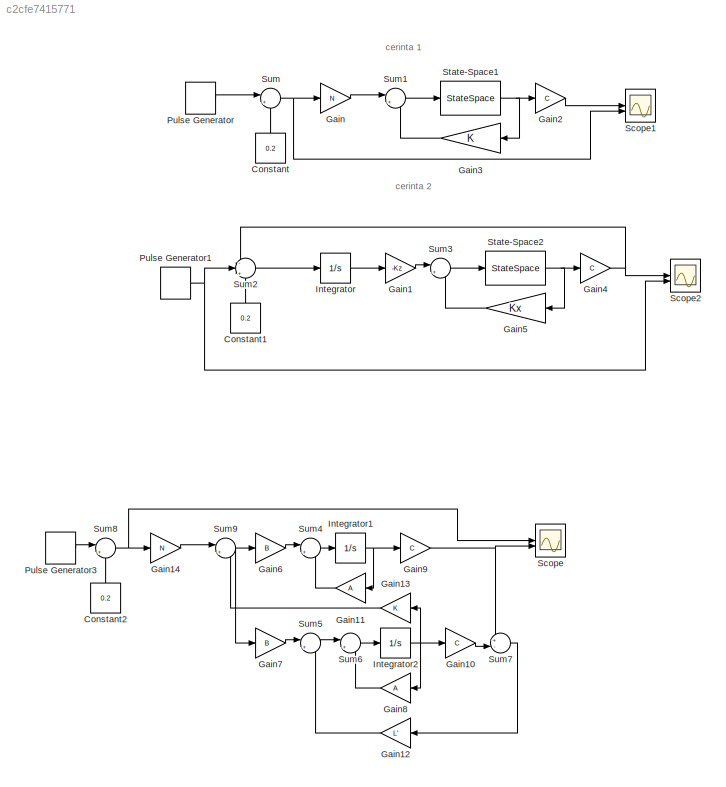
MODEL slx_c2cfe7415771
KIND model
CONFIG AbsTol = auto
CONFIG EnableMultiTasking = off
CONFIG FixedStep = auto
CONFIG MaxStep = auto
CONFIG MinStep = auto
CONFIG RelTol = 1e-3
CONFIG SampleTimeConstraint = Unconstrained
CONFIG SolverName = VariableStepAuto
CONFIG StartTime = 0.0
CONFIG StopTime = 100
BLOCK [Constant] Constant
  Commented = on
  NameLocation = right
  Value = 0.2
BLOCK [Constant] Constant1
  Commented = on
  NameLocation = right
  Value = 0.2
BLOCK [Constant] Constant2
  NameLocation = right
  Value = 0.2
BLOCK [Gain] Gain
  Commented = on
  Gain = N
BLOCK [Gain] Gain1
  Commented = on
  Gain = -Kz
BLOCK [Gain] Gain10
  Gain = C
  Multiplication = Matrix(K*u) (u vector)
BLOCK [Gain] Gain11
  Gain = A
  Multiplication = Matrix(K*u) (u vector)
  NameLocation = top
BLOCK [Gain] Gain12
  Gain = L'
  Multiplication = Matrix(K*u) (u vector)
  NameLocation = top
BLOCK [Gain] Gain13
  Gain = K
  Multiplication = Matrix(K*u) (u vector)
  NameLocation = top
BLOCK [Gain] Gain14
  Gain = N
  Multiplication = Matrix(K*u) (u vector)
BLOCK [Gain] Gain2
  Commented = on
  Gain = C
  Multiplication = Matrix(K*u) (u vector)
BLOCK [Gain] Gain3
  Commented = on
  Gain = K
  Multiplication = Matrix(K*u) (u vector)
  NameLocation = top
BLOCK [Gain] Gain4
  Commented = on
  Gain = C
  Multiplication = Matrix(K*u) (u vector)
BLOCK [Gain] Gain5
  Commented = on
  Gain = Kx
  Multiplication = Matrix(K*u) (u vector)
  NameLocation = top
BLOCK [Gain] Gain6
  Gain = B
  Multiplication = Matrix(K*u) (u vector)
BLOCK [Gain] Gain7
  Gain = B
  Multiplication = Matrix(K*u) (u vector)
BLOCK [Gain] Gain8
  Gain = A
  Multiplication = Matrix(K*u) (u vector)
  NameLocation = top
BLOCK [Gain] Gain9
  Gain = C
  Multiplication = Matrix(K*u) (u vector)
BLOCK [Integrator] Integrator
  Commented = on
BLOCK [Integrator] Integrator1
BLOCK [Integrator] Integrator2
  InitialCondition = [1,2,3]
BLOCK [DiscretePulseGenerator] Pulse Generator
  Amplitude = 0.4
  Commented = on
  Period = 30
  PhaseDelay = 15
  PulseType = Time based
  PulseWidth = 50
BLOCK [DiscretePulseGenerator] Pulse Generator1
  Amplitude = 0.4
  Commented = on
  Period = 30
  PhaseDelay = 15
  PulseType = Time based
  PulseWidth = 50
BLOCK [DiscretePulseGenerator] Pulse Generator3
  Amplitude = 0.4
  Period = 30
  PhaseDelay = 15
  PulseType = Time based
  PulseWidth = 50
BLOCK [Scope] Scope
  Floating = off
  NumInputPorts = 2
  ScopeSpecificationString = Simulink.scopes.TimeScopeBlockCfg('CurrentConfiguration', extmgr.ConfigurationSet(extmgr.Configuration('Core','General UI',true),extmgr.Configuration('Core','Source UI',true),extmgr.Configuration('Sources','WiredSimulink',true,'DataLoggingVariableName','ScopeData2'),extmgr.Configuration('Visuals','Time Domain',true,'SerializedDisplays',{struct('MinYLimReal','-11.70633','MaxYLimReal','6.96524','YLa...<+1403ch>
BLOCK [Scope] Scope1
  Commented = on
  Floating = off
  NumInputPorts = 2
  ScopeSpecificationString = Simulink.scopes.TimeScopeBlockCfg('CurrentConfiguration', extmgr.ConfigurationSet(extmgr.Configuration('Core','General UI',true),extmgr.Configuration('Core','Source UI',true),extmgr.Configuration('Sources','WiredSimulink',true,'DataLoggingVariableName','ScopeData1'),extmgr.Configuration('Visuals','Time Domain',true,'SerializedDisplays',{struct('MinYLimReal','-3.89303','MaxYLimReal','25.80732','YLa...<+2029ch>
BLOCK [Scope] Scope2
  Commented = on
  Floating = off
  NumInputPorts = 2
  ScopeSpecificationString = Simulink.scopes.TimeScopeBlockCfg('CurrentConfiguration', extmgr.ConfigurationSet(extmgr.Configuration('Core','General UI',true),extmgr.Configuration('Core','Source UI',true),extmgr.Configuration('Sources','WiredSimulink',true),extmgr.Configuration('Visuals','Time Domain',true,'SerializedDisplays',{struct('MinYLimReal','-0.27948','MaxYLimReal','0.27979','YLabelReal','','MinYLimMag','0.00000','MaxY...<+2027ch>
BLOCK [StateSpace] State-Space1
  A = A
  B = B
  C = eye(3)
  Commented = on
  D = [0;0;0]
  InitialCondition = [1;2;3]
BLOCK [StateSpace] State-Space2
  A = A
  B = B
  C = eye(3)
  Commented = on
  D = [0;0;0]
  InitialCondition = 0
BLOCK [Sum] Sum
  Commented = on
  Inputs = |+-
BLOCK [Sum] Sum1
  Commented = on
  Inputs = |+-
BLOCK [Sum] Sum2
  Commented = on
  Inputs = -|+-
BLOCK [Sum] Sum3
  Commented = on
  Inputs = |+-
BLOCK [Sum] Sum4
  Inputs = |++
BLOCK [Sum] Sum5
  Inputs = |++
BLOCK [Sum] Sum6
  Inputs = |++
BLOCK [Sum] Sum7
  Inputs = +-|
BLOCK [Sum] Sum8
  Inputs = |+-
BLOCK [Sum] Sum9
  Inputs = |+-
ANNOTATION (root): cerinta 1
ANNOTATION (root): cerinta 2
LINE Constant1:1 -> Sum2:3
LINE Constant2:1 -> Sum8:2
LINE Constant:1 -> Sum:2
LINE Gain10:1 -> Sum7:2
LINE Gain11:1 -> Sum4:2
LINE Gain12:1 -> Sum5:2
LINE Gain13:1 -> Sum9:2
LINE Gain14:1 -> Sum9:1
LINE Gain1:1 -> Sum3:1
LINE Gain2:1 -> Scope1:1
LINE Gain3:1 -> Sum1:2
NET Gain4:1 -> Scope2:1, Sum2:1
LINE Gain5:1 -> Sum3:2
LINE Gain6:1 -> Sum4:1
LINE Gain7:1 -> Sum5:1
LINE Gain8:1 -> Sum6:2
NET Gain9:1 -> Scope:2, Sum7:1
LINE Gain:1 -> Sum1:1
NET Integrator1:1 -> Gain11:1, Gain9:1
NET Integrator2:1 -> Gain10:1, Gain13:1, Gain8:1
LINE Integrator:1 -> Gain1:1
NET Pulse Generator1:1 -> Scope2:2, Sum2:2
LINE Pulse Generator3:1 -> Sum8:1
LINE Pulse Generator:1 -> Sum:1
NET State-Space1:1 -> Gain2:1, Gain3:1
NET State-Space2:1 -> Gain4:1, Gain5:1
LINE Sum1:1 -> State-Space1:1
LINE Sum2:1 -> Integrator:1
LINE Sum3:1 -> State-Space2:1
LINE Sum4:1 -> Integrator1:1
LINE Sum5:1 -> Sum6:1
LINE Sum6:1 -> Integrator2:1
LINE Sum7:1 -> Gain12:1
NET Sum8:1 -> Gain14:1, Scope:1
NET Sum9:1 -> Gain6:1, Gain7:1
NET Sum:1 -> Gain:1, Scope1:2
note: NET lines group one-source signal fan-out (src -> all destinations, sorted); 1:1 wires keep LINE
